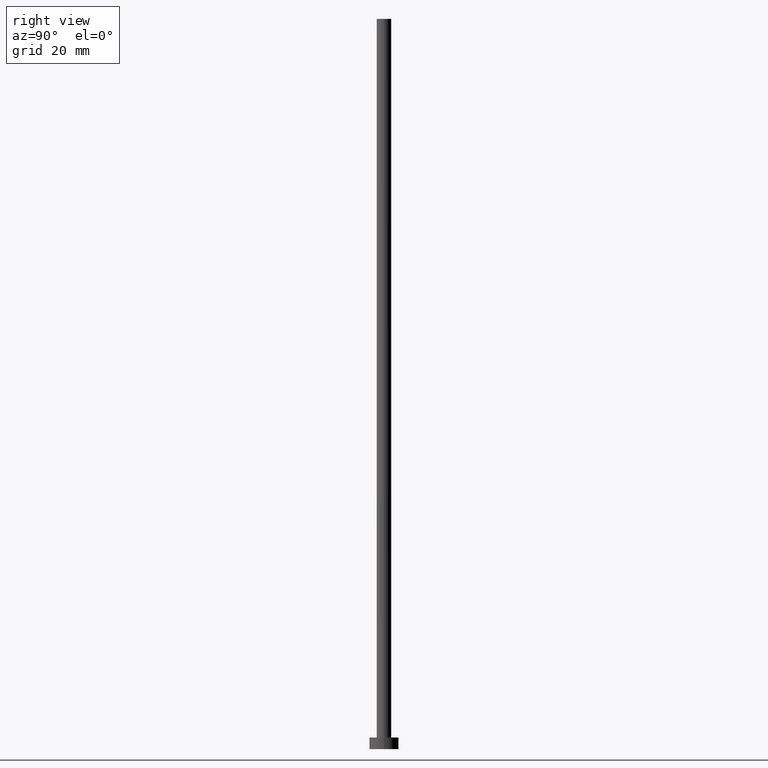
[diagram: clean part render]
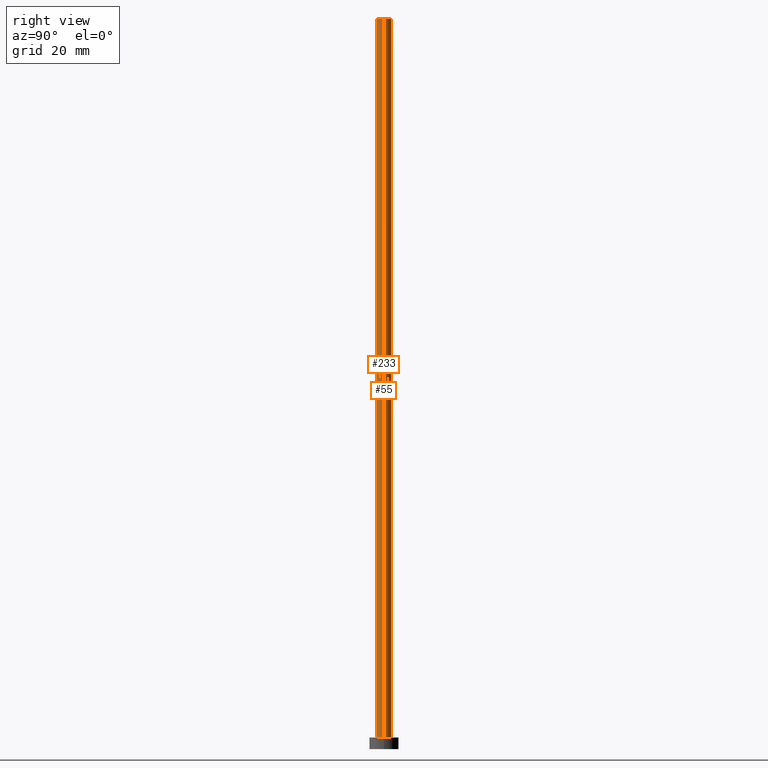
[diagram: same view with one multi-face feature highlighted, each face labeled with its STEP entity id]
A machine part, right view. The highlighted faces form ONE feature: a constant-radius fillet chain: 2 tangent blend faces with common blend radius 1.25 mm. The faces share edges in the B-rep.
Their STEP definitions:
[1] entity #233 (Cylinder):
#13 = DIRECTION ( 'NONE',  ( -0.000000000000000000, -0.000000000000000000, -1.000000000000000000 ) ) ;
#26 = DIRECTION ( 'NONE',  ( 1.000000000000000000, 0.000000000000000000, 0.000000000000000000 ) ) ;
#29 = CARTESIAN_POINT ( 'NONE',  ( -1.250000000000000000, 0.000000000000000000, 125.0000000000000000 ) ) ;
#37 = ORIENTED_EDGE ( 'NONE', *, *, #119, .T. ) ;
#43 = ORIENTED_EDGE ( 'NONE', *, *, #64, .T. ) ;
#53 = CARTESIAN_POINT ( 'NONE',  ( -1.250000000000000000, 0.000000000000000000, 2.000000000000000000 ) ) ;
#57 = VERTEX_POINT ( 'NONE', #62 ) ;
#62 = CARTESIAN_POINT ( 'NONE',  ( 1.250000000000000000, 1.530808498934191571E-16, 125.0000000000000000 ) ) ;
#64 = EDGE_CURVE ( 'NONE', #125, #244, #111, .T. ) ;
#65 = CARTESIAN_POINT ( 'NONE',  ( 1.250000000000000000, 1.530808498934191571E-16, 2.000000000000000000 ) ) ;
#67 = EDGE_LOOP ( 'NONE', ( #140, #153, #43, #37 ) ) ;
#68 = LINE ( 'NONE', #231, #159 ) ;
#70 = DIRECTION ( 'NONE',  ( -0.000000000000000000, -0.000000000000000000, -1.000000000000000000 ) ) ;
#84 = CARTESIAN_POINT ( 'NONE',  ( 0.000000000000000000, 0.000000000000000000, 125.0000000000000000 ) ) ;
#111 = LINE ( 'NONE', #180, #187 ) ;
#119 = EDGE_CURVE ( 'NONE', #244, #175, #217, .T. ) ;
#125 = VERTEX_POINT ( 'NONE', #29 ) ;
#127 = CIRCLE ( 'NONE', #239, 1.250000000000000000 ) ;
#133 = EDGE_CURVE ( 'NONE', #125, #57, #127, .T. ) ;
#140 = ORIENTED_EDGE ( 'NONE', *, *, #243, .F. ) ;
#145 = CARTESIAN_POINT ( 'NONE',  ( 0.000000000000000000, 0.000000000000000000, 2.000000000000000000 ) ) ;
#153 = ORIENTED_EDGE ( 'NONE', *, *, #133, .F. ) ;
#159 = VECTOR ( 'NONE', #13, 1000.000000000000000 ) ;
#161 = AXIS2_PLACEMENT_3D ( 'NONE', #208, #70, #247 ) ;
#162 = DIRECTION ( 'NONE',  ( 0.000000000000000000, 0.000000000000000000, 1.000000000000000000 ) ) ;
#175 = VERTEX_POINT ( 'NONE', #65 ) ;
#178 = DIRECTION ( 'NONE',  ( -0.000000000000000000, -0.000000000000000000, -1.000000000000000000 ) ) ;
#180 = CARTESIAN_POINT ( 'NONE',  ( -1.250000000000000000, 0.000000000000000000, 125.0000000000000000 ) ) ;
#183 = DIRECTION ( 'NONE',  ( 0.000000000000000000, 0.000000000000000000, 1.000000000000000000 ) ) ;
#187 = VECTOR ( 'NONE', #178, 1000.000000000000000 ) ;
#204 = DIRECTION ( 'NONE',  ( 1.000000000000000000, 0.000000000000000000, 0.000000000000000000 ) ) ;
#206 = FACE_OUTER_BOUND ( 'NONE', #67, .T. ) ;
#208 = CARTESIAN_POINT ( 'NONE',  ( 0.000000000000000000, 0.000000000000000000, 125.0000000000000000 ) ) ;
#217 = CIRCLE ( 'NONE', #246, 1.250000000000000000 ) ;
#231 = CARTESIAN_POINT ( 'NONE',  ( 1.250000000000000000, 1.530808498934191571E-16, 125.0000000000000000 ) ) ;
#232 = CYLINDRICAL_SURFACE ( 'NONE', #161, 1.250000000000000000 ) ;
#233 = ADVANCED_FACE ( 'NONE', ( #206 ), #232, .T. ) ;
#239 = AXIS2_PLACEMENT_3D ( 'NONE', #84, #162, #26 ) ;
#243 = EDGE_CURVE ( 'NONE', #57, #175, #68, .T. ) ;
#244 = VERTEX_POINT ( 'NONE', #53 ) ;
#246 = AXIS2_PLACEMENT_3D ( 'NONE', #145, #183, #204 ) ;
#247 = DIRECTION ( 'NONE',  ( -1.000000000000000000, 0.000000000000000000, 0.000000000000000000 ) ) ;
[2] entity #55 (Cylinder):
#8 = DIRECTION ( 'NONE',  ( 1.000000000000000000, 0.000000000000000000, 0.000000000000000000 ) ) ;
#13 = DIRECTION ( 'NONE',  ( -0.000000000000000000, -0.000000000000000000, -1.000000000000000000 ) ) ;
#18 = ORIENTED_EDGE ( 'NONE', *, *, #243, .T. ) ;
#20 = ORIENTED_EDGE ( 'NONE', *, *, #64, .F. ) ;
#29 = CARTESIAN_POINT ( 'NONE',  ( -1.250000000000000000, 0.000000000000000000, 125.0000000000000000 ) ) ;
#45 = CARTESIAN_POINT ( 'NONE',  ( 0.000000000000000000, 0.000000000000000000, 125.0000000000000000 ) ) ;
#47 = DIRECTION ( 'NONE',  ( -0.000000000000000000, -0.000000000000000000, -1.000000000000000000 ) ) ;
#49 = AXIS2_PLACEMENT_3D ( 'NONE', #147, #164, #85 ) ;
#53 = CARTESIAN_POINT ( 'NONE',  ( -1.250000000000000000, 0.000000000000000000, 2.000000000000000000 ) ) ;
#54 = CIRCLE ( 'NONE', #168, 1.250000000000000000 ) ;
#55 = ADVANCED_FACE ( 'NONE', ( #134 ), #158, .T. ) ;
#57 = VERTEX_POINT ( 'NONE', #62 ) ;
#62 = CARTESIAN_POINT ( 'NONE',  ( 1.250000000000000000, 1.530808498934191571E-16, 125.0000000000000000 ) ) ;
#64 = EDGE_CURVE ( 'NONE', #125, #244, #111, .T. ) ;
#65 = CARTESIAN_POINT ( 'NONE',  ( 1.250000000000000000, 1.530808498934191571E-16, 2.000000000000000000 ) ) ;
#68 = LINE ( 'NONE', #231, #159 ) ;
#83 = DIRECTION ( 'NONE',  ( 0.000000000000000000, 0.000000000000000000, 1.000000000000000000 ) ) ;
#85 = DIRECTION ( 'NONE',  ( 1.000000000000000000, 0.000000000000000000, 0.000000000000000000 ) ) ;
#97 = AXIS2_PLACEMENT_3D ( 'NONE', #222, #47, #181 ) ;
#111 = LINE ( 'NONE', #180, #187 ) ;
#123 = ORIENTED_EDGE ( 'NONE', *, *, #191, .T. ) ;
#125 = VERTEX_POINT ( 'NONE', #29 ) ;
#134 = FACE_OUTER_BOUND ( 'NONE', #170, .T. ) ;
#144 = CIRCLE ( 'NONE', #49, 1.250000000000000000 ) ;
#147 = CARTESIAN_POINT ( 'NONE',  ( 0.000000000000000000, 0.000000000000000000, 2.000000000000000000 ) ) ;
#158 = CYLINDRICAL_SURFACE ( 'NONE', #97, 1.250000000000000000 ) ;
#159 = VECTOR ( 'NONE', #13, 1000.000000000000000 ) ;
#164 = DIRECTION ( 'NONE',  ( 0.000000000000000000, 0.000000000000000000, 1.000000000000000000 ) ) ;
#168 = AXIS2_PLACEMENT_3D ( 'NONE', #45, #83, #8 ) ;
#170 = EDGE_LOOP ( 'NONE', ( #201, #18, #123, #20 ) ) ;
#174 = EDGE_CURVE ( 'NONE', #57, #125, #54, .T. ) ;
#175 = VERTEX_POINT ( 'NONE', #65 ) ;
#178 = DIRECTION ( 'NONE',  ( -0.000000000000000000, -0.000000000000000000, -1.000000000000000000 ) ) ;
#180 = CARTESIAN_POINT ( 'NONE',  ( -1.250000000000000000, 0.000000000000000000, 125.0000000000000000 ) ) ;
#181 = DIRECTION ( 'NONE',  ( -1.000000000000000000, 0.000000000000000000, 0.000000000000000000 ) ) ;
#187 = VECTOR ( 'NONE', #178, 1000.000000000000000 ) ;
#191 = EDGE_CURVE ( 'NONE', #175, #244, #144, .T. ) ;
#201 = ORIENTED_EDGE ( 'NONE', *, *, #174, .F. ) ;
#222 = CARTESIAN_POINT ( 'NONE',  ( 0.000000000000000000, 0.000000000000000000, 125.0000000000000000 ) ) ;
#231 = CARTESIAN_POINT ( 'NONE',  ( 1.250000000000000000, 1.530808498934191571E-16, 125.0000000000000000 ) ) ;
#243 = EDGE_CURVE ( 'NONE', #57, #175, #68, .T. ) ;
#244 = VERTEX_POINT ( 'NONE', #53 ) ;